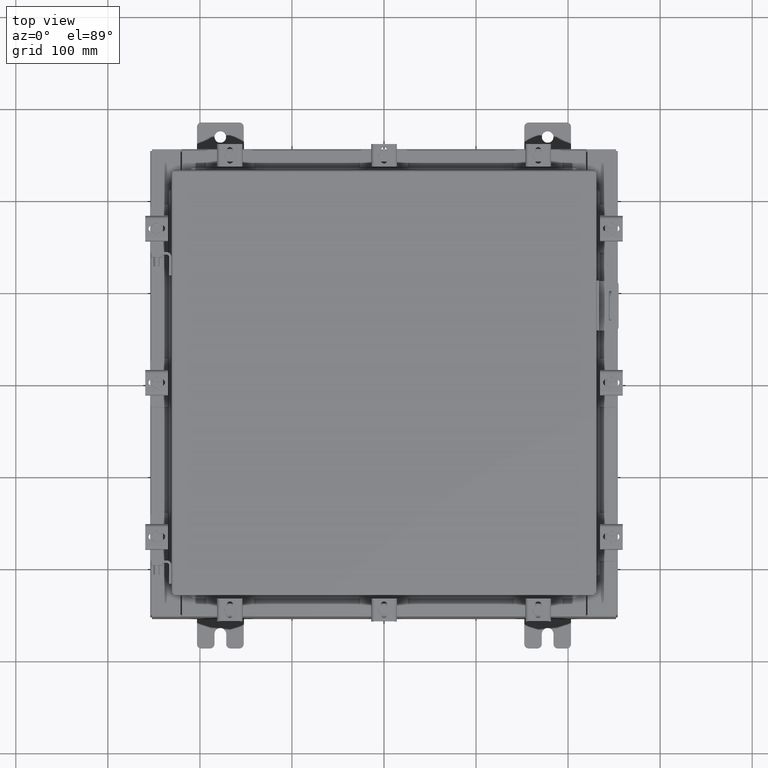
[diagram: clean part render]
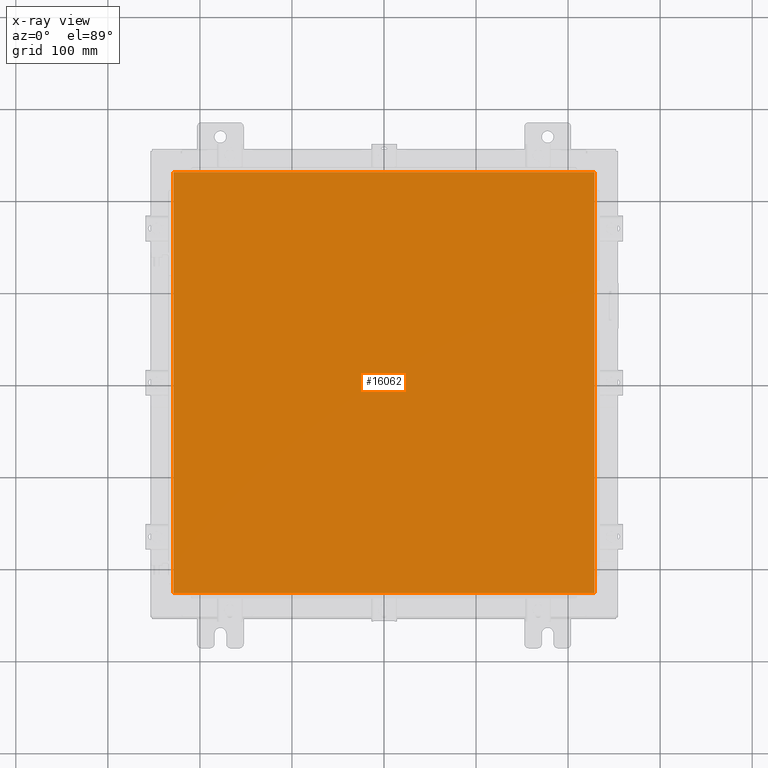
[diagram: x-ray — body ghosted, one internal face saturated and labeled with its STEP entity id]
A machine part, top view, then the same camera in x-ray: the body is ghosted and one INTERNAL B-rep face — a face not visible from any outside direction — is saturated and labeled: STEP entity #16062.
In plain terms, the highlighted planar face has unit normal (0, 0, -1).
Its self-contained STEP definition (entity closure, byte-faithful):
#353 = CARTESIAN_POINT ( 'NONE',  ( 0.0000000000000000000, 0.0000000000000000000, -0.07470000000000015500 ) ) ;
#451 = LINE ( 'NONE', #15621, #9224 ) ;
#1574 = LINE ( 'NONE', #6127, #19025 ) ;
#1852 = DIRECTION ( 'NONE',  ( 0.0000000000000000000, -1.000000000000000000, 0.0000000000000000000 ) ) ;
#2108 = PLANE ( 'NONE',  #22533 ) ;
#2668 = ORIENTED_EDGE ( 'NONE', *, *, #12230, .F. ) ;
#3308 = CARTESIAN_POINT ( 'NONE',  ( -9.006299999999997800, 9.006299999999997800, -0.07470000000000015500 ) ) ;
#3434 = DIRECTION ( 'NONE',  ( 1.000000000000000000, -0.0000000000000000000, -0.0000000000000000000 ) ) ;
#3677 = VECTOR ( 'NONE', #17315, 39.37007874015748100 ) ;
#4027 = EDGE_CURVE ( 'NONE', #14597, #10768, #1574, .T. ) ;
#5500 = LINE ( 'NONE', #12315, #14708 ) ;
#5534 = ORIENTED_EDGE ( 'NONE', *, *, #4027, .F. ) ;
#6127 = CARTESIAN_POINT ( 'NONE',  ( 9.006300000000001300, 9.006299999999999500, -0.07470000000000015500 ) ) ;
#7198 = EDGE_CURVE ( 'NONE', #13581, #14597, #8324, .T. ) ;
#7298 = CARTESIAN_POINT ( 'NONE',  ( 9.006299999999999500, 9.006299999999999500, -0.07470000000000015500 ) ) ;
#8324 = LINE ( 'NONE', #8643, #3677 ) ;
#8643 = CARTESIAN_POINT ( 'NONE',  ( 9.006300000000001300, -9.006299999999999500, -0.07470000000000015500 ) ) ;
#9224 = VECTOR ( 'NONE', #3434, 39.37007874015748100 ) ;
#10732 = FACE_OUTER_BOUND ( 'NONE', #17213, .T. ) ;
#10768 = VERTEX_POINT ( 'NONE', #3308 ) ;
#10902 = DIRECTION ( 'NONE',  ( -1.000000000000000000, 0.0000000000000000000, -0.0000000000000000000 ) ) ;
#12230 = EDGE_CURVE ( 'NONE', #10768, #17875, #5500, .T. ) ;
#12315 = CARTESIAN_POINT ( 'NONE',  ( -9.006299999999997800, 9.006299999999999500, -0.07470000000000125200 ) ) ;
#13581 = VERTEX_POINT ( 'NONE', #18661 ) ;
#13865 = CARTESIAN_POINT ( 'NONE',  ( -9.006299999999997800, -9.006299999999999500, -0.07470000000000015500 ) ) ;
#14597 = VERTEX_POINT ( 'NONE', #7298 ) ;
#14708 = VECTOR ( 'NONE', #1852, 39.37007874015748100 ) ;
#15621 = CARTESIAN_POINT ( 'NONE',  ( -9.006299999999997800, -9.006299999999999500, -0.07470000000000015500 ) ) ;
#15955 = ORIENTED_EDGE ( 'NONE', *, *, #20421, .F. ) ;
#16062 = ADVANCED_FACE ( 'NONE', ( #10732 ), #2108, .T. ) ;
#16174 = ORIENTED_EDGE ( 'NONE', *, *, #7198, .F. ) ;
#17213 = EDGE_LOOP ( 'NONE', ( #16174, #15955, #2668, #5534 ) ) ;
#17315 = DIRECTION ( 'NONE',  ( 0.0000000000000000000, 1.000000000000000000, 0.0000000000000000000 ) ) ;
#17875 = VERTEX_POINT ( 'NONE', #13865 ) ;
#18661 = CARTESIAN_POINT ( 'NONE',  ( 9.006300000000001300, -9.006299999999999500, -0.07470000000000015500 ) ) ;
#19025 = VECTOR ( 'NONE', #19574, 39.37007874015748100 ) ;
#19574 = DIRECTION ( 'NONE',  ( -1.000000000000000000, -0.0000000000000000000, -0.0000000000000000000 ) ) ;
#20421 = EDGE_CURVE ( 'NONE', #17875, #13581, #451, .T. ) ;
#21281 = DIRECTION ( 'NONE',  ( 0.0000000000000000000, 0.0000000000000000000, -1.000000000000000000 ) ) ;
#22533 = AXIS2_PLACEMENT_3D ( 'NONE', #353, #21281, #10902 ) ;